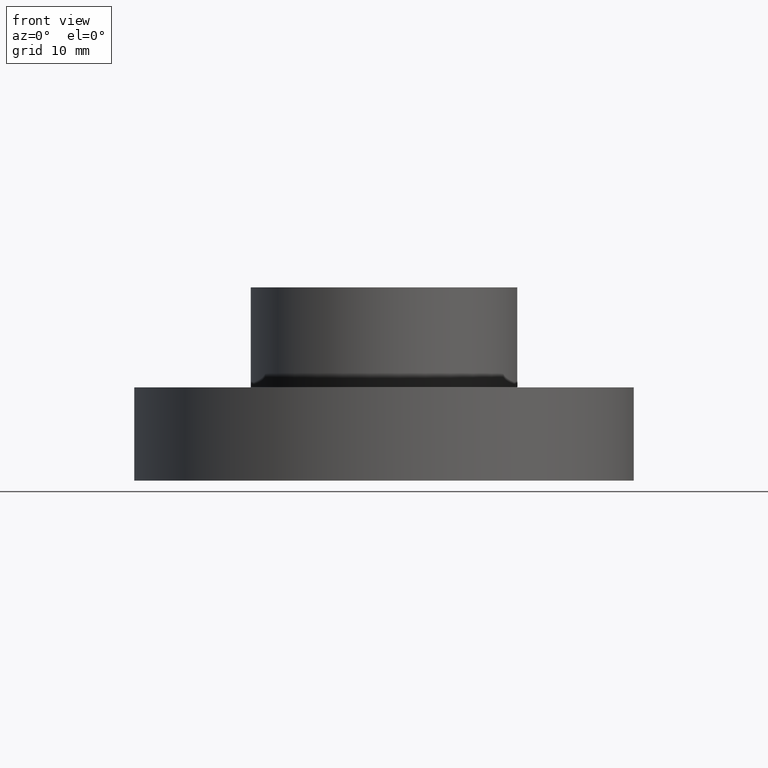
[diagram: clean part render]
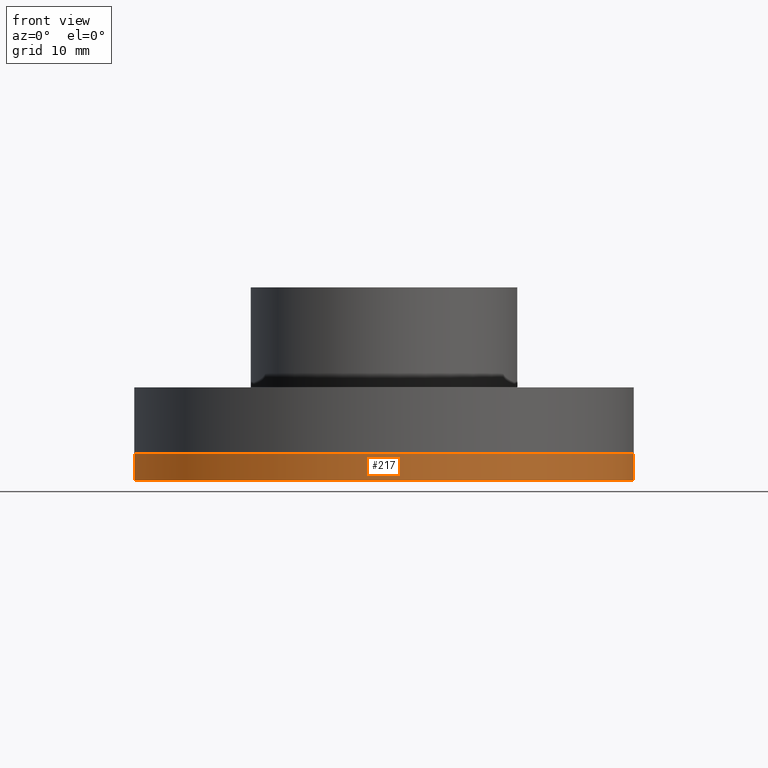
[diagram: same view with one face highlighted and labeled with its STEP entity id]
A machine part, front view. The second image highlights one B-rep face of the part: STEP entity #217.
In plain terms, the highlighted cylindrical surface (bore or boss wall) has radius 37.5 mm, axis along (0, -0, 1).
Its self-contained STEP definition (entity closure, byte-faithful):
#217 = ADVANCED_FACE( '', ( #250, #251 ), #252, .T. );
#250 = FACE_OUTER_BOUND( '', #322, .T. );
#251 = FACE_OUTER_BOUND( '', #323, .T. );
#252 = CYLINDRICAL_SURFACE( '', #324, 37.5000000000000 );
#322 = EDGE_LOOP( '', ( #396 ) );
#323 = EDGE_LOOP( '', ( #397 ) );
#324 = AXIS2_PLACEMENT_3D( '', #398, #399, #400 );
#396 = ORIENTED_EDGE( '', *, *, #563, .F. );
#397 = ORIENTED_EDGE( '', *, *, #565, .T. );
#398 = CARTESIAN_POINT( '', ( 0.000000000000000, 0.000000000000000, 4.00000000000000 ) );
#399 = DIRECTION( '', ( 0.000000000000000, -0.000000000000000, 1.00000000000000 ) );
#400 = DIRECTION( '', ( -1.00000000000000, 0.000000000000000, 0.000000000000000 ) );
#563 = EDGE_CURVE( '', #609, #609, #610, .T. );
#565 = EDGE_CURVE( '', #613, #613, #614, .T. );
#609 = VERTEX_POINT( '', #689 );
#610 = CIRCLE( '', #690, 37.5000000000000 );
#613 = VERTEX_POINT( '', #693 );
#614 = CIRCLE( '', #694, 37.5000000000000 );
#689 = CARTESIAN_POINT( '', ( 37.5000000000000, 0.000000000000000, 4.00000000000000 ) );
#690 = AXIS2_PLACEMENT_3D( '', #933, #934, #935 );
#693 = CARTESIAN_POINT( '', ( 37.5000000000000, 0.000000000000000, 0.000000000000000 ) );
#694 = AXIS2_PLACEMENT_3D( '', #939, #940, #941 );
#933 = CARTESIAN_POINT( '', ( 0.000000000000000, 0.000000000000000, 4.00000000000000 ) );
#934 = DIRECTION( '', ( 0.000000000000000, 0.000000000000000, 1.00000000000000 ) );
#935 = DIRECTION( '', ( 1.00000000000000, 0.000000000000000, 0.000000000000000 ) );
#939 = CARTESIAN_POINT( '', ( 0.000000000000000, 0.000000000000000, 0.000000000000000 ) );
#940 = DIRECTION( '', ( 0.000000000000000, 0.000000000000000, 1.00000000000000 ) );
#941 = DIRECTION( '', ( 1.00000000000000, 0.000000000000000, 0.000000000000000 ) );